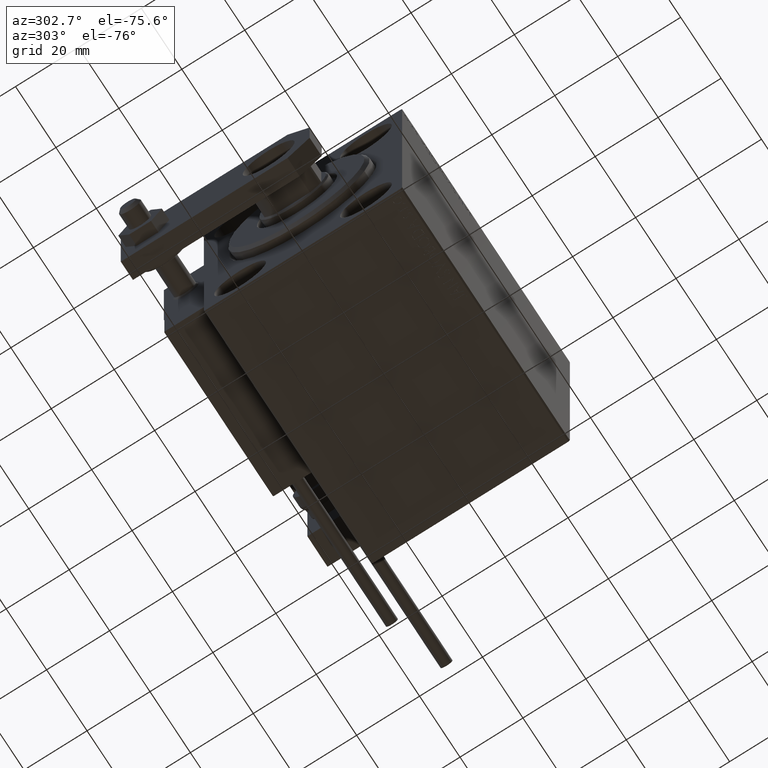
[diagram: clean part render]
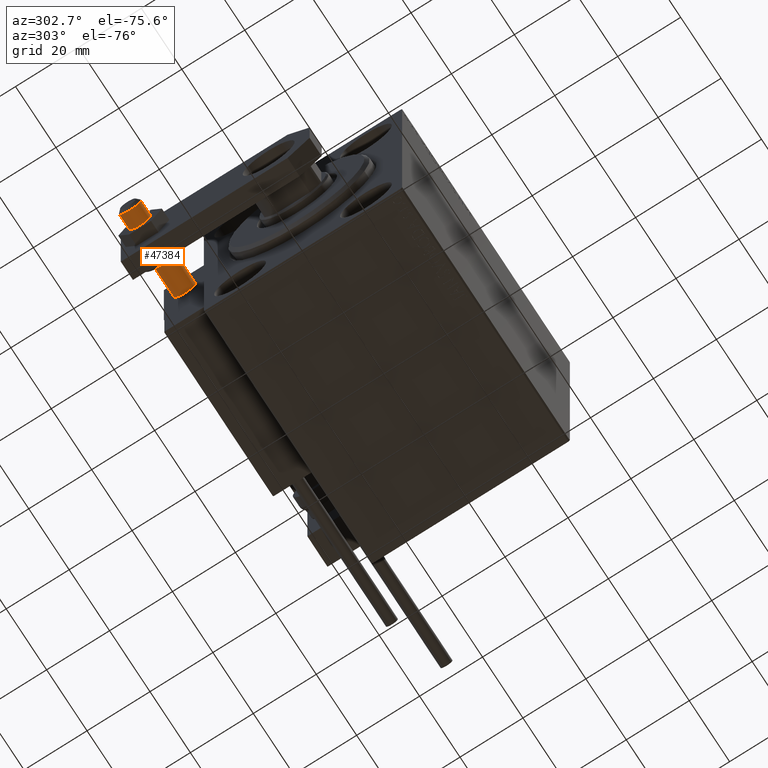
[diagram: same view with one face highlighted and labeled with its STEP entity id]
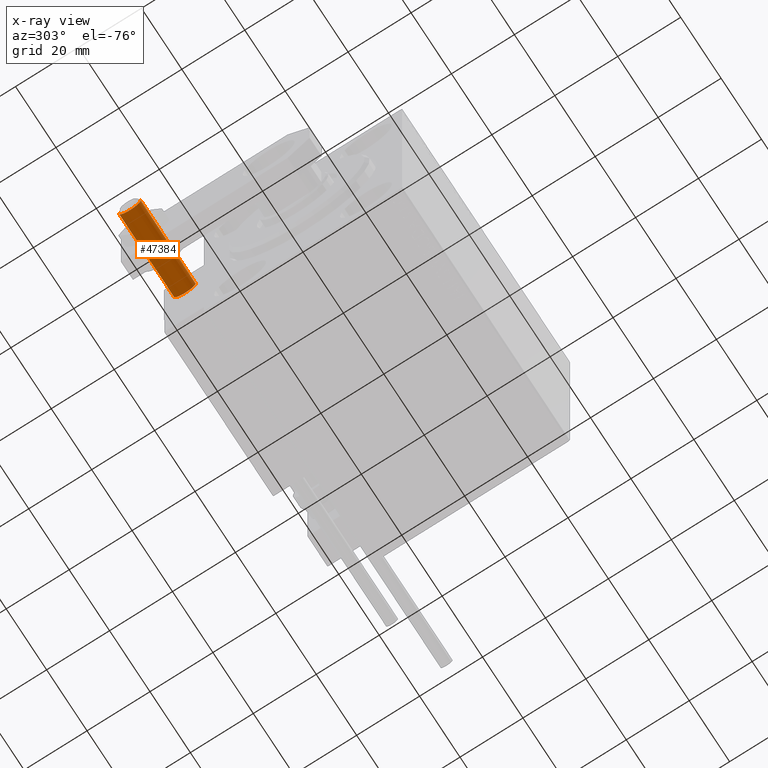
[diagram: x-ray of the same camera — body ghosted, the highlighted face saturated]
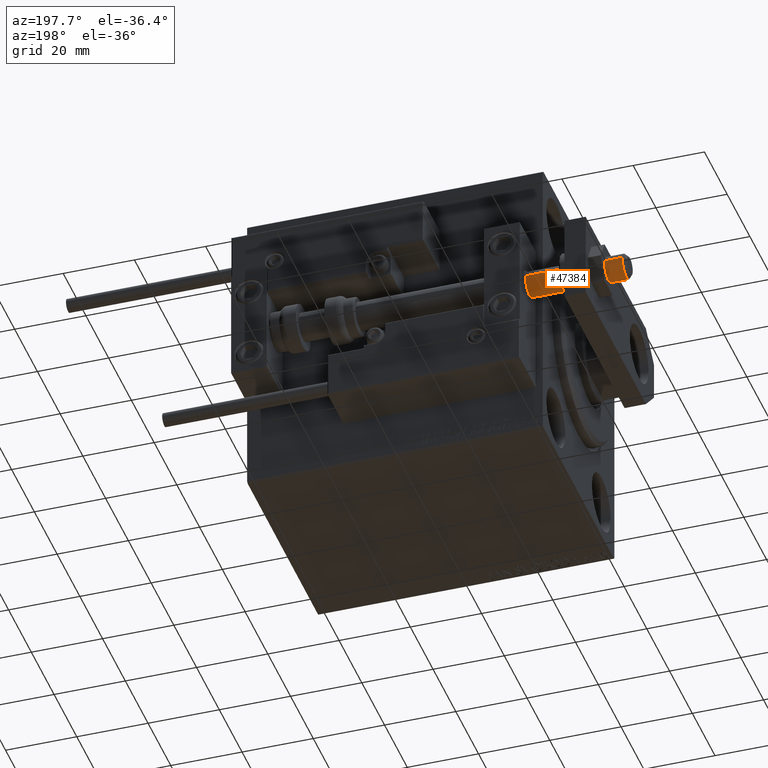
[diagram: same view with one face highlighted and labeled with its STEP entity id]
A machine part, auxiliary view. The second image highlights one B-rep face of the part: STEP entity #47384.
The next image is the same camera in x-ray: the body ghosted, the highlighted face saturated — about 0% of this face is hidden behind the body in this view.
A second angle (auxiliary view) of the same face is appended — the face is thin or edge-on in the first view.
In plain terms, the highlighted cylindrical surface (edge-blend (fillet) strip) has radius 3.5 mm, axis along (1, -0, -0).
Its self-contained STEP definition (entity closure, byte-faithful):
#659 = AXIS2_PLACEMENT_3D ( 'NONE', #28219, #46454, #3906 ) ;
#2331 = DIRECTION ( 'NONE',  ( -1.000000000000000000, 0.000000000000000000, 0.000000000000000000 ) ) ;
#3906 = DIRECTION ( 'NONE',  ( 1.000000000000000000, 0.000000000000000000, 0.000000000000000000 ) ) ;
#4104 = VERTEX_POINT ( 'NONE', #15704 ) ;
#4314 = FACE_OUTER_BOUND ( 'NONE', #34612, .T. ) ;
#6902 = CIRCLE ( 'NONE', #27852, 3.500000000000000000 ) ;
#9967 = EDGE_CURVE ( 'NONE', #30476, #4104, #15328, .T. ) ;
#10215 = VERTEX_POINT ( 'NONE', #27489 ) ;
#10642 = CARTESIAN_POINT ( 'NONE',  ( 3.500000000000000000, 0.000000000000000000, -26.69999999999999929 ) ) ;
#12002 = ORIENTED_EDGE ( 'NONE', *, *, #18655, .T. ) ;
#13000 = CARTESIAN_POINT ( 'NONE',  ( 0.000000000000000000, 0.000000000000000000, -25.69999999999998508 ) ) ;
#15328 = LINE ( 'NONE', #41891, #31763 ) ;
#15704 = CARTESIAN_POINT ( 'NONE',  ( -3.500000000000000000, 4.286263797015736595E-16, 1.500000000000025535 ) ) ;
#18655 = EDGE_CURVE ( 'NONE', #30476, #32629, #6902, .T. ) ;
#21730 = CIRCLE ( 'NONE', #659, 3.500000000000000000 ) ;
#23099 = DIRECTION ( 'NONE',  ( 1.000000000000000000, 0.000000000000000000, 0.000000000000000000 ) ) ;
#25988 = DIRECTION ( 'NONE',  ( -0.000000000000000000, -0.000000000000000000, 1.000000000000000000 ) ) ;
#27253 = EDGE_CURVE ( 'NONE', #32629, #10215, #33692, .T. ) ;
#27489 = CARTESIAN_POINT ( 'NONE',  ( 3.500000000000000000, 0.000000000000000000, 1.500000000000025535 ) ) ;
#27639 = DIRECTION ( 'NONE',  ( -0.000000000000000000, -0.000000000000000000, 1.000000000000000000 ) ) ;
#27852 = AXIS2_PLACEMENT_3D ( 'NONE', #13000, #28953, #2331 ) ;
#28219 = CARTESIAN_POINT ( 'NONE',  ( 0.000000000000000000, 0.000000000000000000, 1.500000000000025535 ) ) ;
#28953 = DIRECTION ( 'NONE',  ( 0.000000000000000000, 0.000000000000000000, 1.000000000000000000 ) ) ;
#29808 = EDGE_CURVE ( 'NONE', #10215, #4104, #21730, .T. ) ;
#30465 = CARTESIAN_POINT ( 'NONE',  ( 3.500000000000000000, 0.000000000000000000, -25.69999999999998508 ) ) ;
#30476 = VERTEX_POINT ( 'NONE', #35082 ) ;
#30559 = VECTOR ( 'NONE', #41756, 1000.000000000000000 ) ;
#31425 = CARTESIAN_POINT ( 'NONE',  ( 0.000000000000000000, 0.000000000000000000, -26.69999999999999929 ) ) ;
#31763 = VECTOR ( 'NONE', #25988, 1000.000000000000000 ) ;
#32629 = VERTEX_POINT ( 'NONE', #30465 ) ;
#33093 = AXIS2_PLACEMENT_3D ( 'NONE', #31425, #27639, #23099 ) ;
#33692 = LINE ( 'NONE', #10642, #30559 ) ;
#34612 = EDGE_LOOP ( 'NONE', ( #39179, #12002, #39148, #40720 ) ) ;
#35082 = CARTESIAN_POINT ( 'NONE',  ( -3.500000000000000000, 4.286263797015736595E-16, -25.69999999999998508 ) ) ;
#39148 = ORIENTED_EDGE ( 'NONE', *, *, #27253, .T. ) ;
#39179 = ORIENTED_EDGE ( 'NONE', *, *, #9967, .F. ) ;
#40720 = ORIENTED_EDGE ( 'NONE', *, *, #29808, .T. ) ;
#41756 = DIRECTION ( 'NONE',  ( -0.000000000000000000, -0.000000000000000000, 1.000000000000000000 ) ) ;
#41891 = CARTESIAN_POINT ( 'NONE',  ( -3.500000000000000000, 4.286263797015736595E-16, -26.69999999999999929 ) ) ;
#42541 = CYLINDRICAL_SURFACE ( 'NONE', #33093, 3.500000000000000000 ) ;
#46454 = DIRECTION ( 'NONE',  ( 0.000000000000000000, 0.000000000000000000, -1.000000000000000000 ) ) ;
#47384 = ADVANCED_FACE ( 'NONE', ( #4314 ), #42541, .T. ) ;